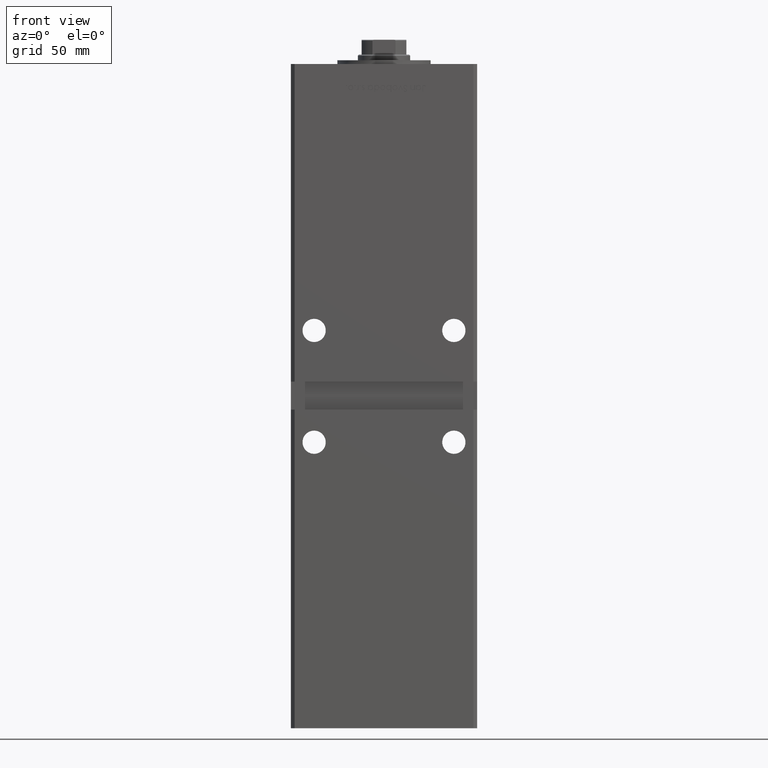
[diagram: clean part render]
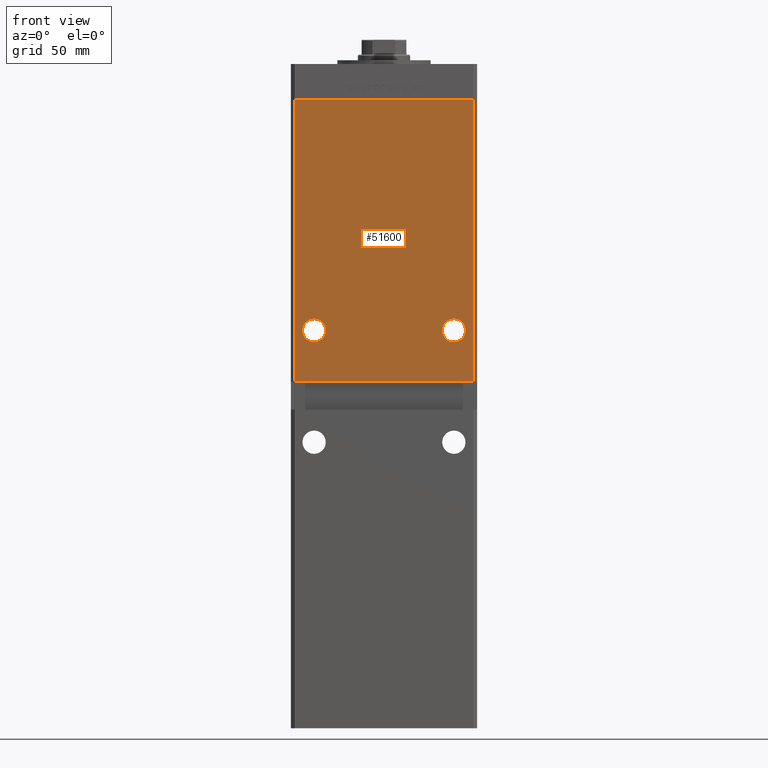
[diagram: same view with one face highlighted and labeled with its STEP entity id]
A machine part, front view. The second image highlights one B-rep face of the part: STEP entity #51600.
In plain terms, the highlighted planar face has unit normal (0, 1, 0).
Its self-contained STEP definition (entity closure, byte-faithful):
#78 = LINE ( 'NONE', #20251, #8780 ) ;
#266 = EDGE_LOOP ( 'NONE', ( #18989, #14982, #3834, #10380 ) ) ;
#2890 = VECTOR ( 'NONE', #48695, 1000.000000000000000 ) ;
#3060 = EDGE_CURVE ( 'NONE', #25524, #16520, #49893, .T. ) ;
#3333 = DIRECTION ( 'NONE',  ( 0.000000000000000000, 1.000000000000000000, 0.000000000000000000 ) ) ;
#3834 = ORIENTED_EDGE ( 'NONE', *, *, #42076, .F. ) ;
#4526 = DIRECTION ( 'NONE',  ( 0.000000000000000000, 1.000000000000000000, 0.000000000000000000 ) ) ;
#4896 = FACE_OUTER_BOUND ( 'NONE', #266, .T. ) ;
#5158 = FACE_BOUND ( 'NONE', #47475, .T. ) ;
#5722 = CIRCLE ( 'NONE', #52916, 6.250000000000005329 ) ;
#6778 = CARTESIAN_POINT ( 'NONE',  ( -49.99999999999997158, -43.50000000000000000, 167.0000000000000000 ) ) ;
#6833 = CARTESIAN_POINT ( 'NONE',  ( 47.99999999999998579, -43.50000000000000000, 318.5000000000000000 ) ) ;
#8045 = EDGE_CURVE ( 'NONE', #16520, #25524, #33638, .T. ) ;
#8780 = VECTOR ( 'NONE', #24805, 1000.000000000000000 ) ;
#9264 = ORIENTED_EDGE ( 'NONE', *, *, #22839, .T. ) ;
#10027 = LINE ( 'NONE', #6778, #2890 ) ;
#10380 = ORIENTED_EDGE ( 'NONE', *, *, #45963, .F. ) ;
#10608 = VERTEX_POINT ( 'NONE', #48732 ) ;
#11976 = VERTEX_POINT ( 'NONE', #53026 ) ;
#12274 = CARTESIAN_POINT ( 'NONE',  ( 47.99999999999998579, -43.50000000000000000, 167.0000000000000000 ) ) ;
#12429 = CARTESIAN_POINT ( 'NONE',  ( -37.50000000000000000, -43.50000000000000000, 200.7500000000000000 ) ) ;
#13346 = CARTESIAN_POINT ( 'NONE',  ( 37.50000000000000000, -43.50000000000000000, 200.7500000000000000 ) ) ;
#13528 = DIRECTION ( 'NONE',  ( 0.000000000000000000, 1.000000000000000000, 0.000000000000000000 ) ) ;
#14489 = EDGE_CURVE ( 'NONE', #23123, #11976, #10027, .T. ) ;
#14982 = ORIENTED_EDGE ( 'NONE', *, *, #14489, .F. ) ;
#15698 = CARTESIAN_POINT ( 'NONE',  ( 37.50000000000000000, -43.50000000000000000, 188.2500000000000000 ) ) ;
#15703 = DIRECTION ( 'NONE',  ( 1.000000000000000000, 0.000000000000000000, 0.000000000000000000 ) ) ;
#15908 = AXIS2_PLACEMENT_3D ( 'NONE', #21195, #4526, #29782 ) ;
#16520 = VERTEX_POINT ( 'NONE', #13346 ) ;
#18757 = AXIS2_PLACEMENT_3D ( 'NONE', #33139, #29616, #21294 ) ;
#18989 = ORIENTED_EDGE ( 'NONE', *, *, #28689, .T. ) ;
#18993 = EDGE_LOOP ( 'NONE', ( #43128, #37845 ) ) ;
#19287 = LINE ( 'NONE', #32193, #20205 ) ;
#19720 = DIRECTION ( 'NONE',  ( 0.000000000000000000, 0.000000000000000000, 1.000000000000000000 ) ) ;
#20205 = VECTOR ( 'NONE', #40787, 1000.000000000000000 ) ;
#20251 = CARTESIAN_POINT ( 'NONE',  ( -47.99999999999998579, -43.50000000000000000, 318.5000000000000000 ) ) ;
#21195 = CARTESIAN_POINT ( 'NONE',  ( -37.50000000000000000, -43.50000000000000000, 194.5000000000000000 ) ) ;
#21294 = DIRECTION ( 'NONE',  ( 0.000000000000000000, -0.000000000000000000, 1.000000000000000000 ) ) ;
#21322 = CARTESIAN_POINT ( 'NONE',  ( 37.50000000000000000, -43.50000000000000000, 194.5000000000000000 ) ) ;
#22084 = PLANE ( 'NONE',  #18757 ) ;
#22352 = CARTESIAN_POINT ( 'NONE',  ( -47.99999999999998579, -43.50000000000000000, 318.5000000000000000 ) ) ;
#22839 = EDGE_CURVE ( 'NONE', #10608, #49842, #31348, .T. ) ;
#23123 = VERTEX_POINT ( 'NONE', #12274 ) ;
#24031 = CARTESIAN_POINT ( 'NONE',  ( -47.99999999999998579, -43.50000000000000000, 318.5000000000000000 ) ) ;
#24805 = DIRECTION ( 'NONE',  ( -0.000000000000000000, -0.000000000000000000, -1.000000000000000000 ) ) ;
#25008 = AXIS2_PLACEMENT_3D ( 'NONE', #40150, #3333, #19720 ) ;
#25524 = VERTEX_POINT ( 'NONE', #15698 ) ;
#26837 = DIRECTION ( 'NONE',  ( 0.000000000000000000, 0.000000000000000000, 1.000000000000000000 ) ) ;
#28689 = EDGE_CURVE ( 'NONE', #28991, #11976, #78, .T. ) ;
#28991 = VERTEX_POINT ( 'NONE', #22352 ) ;
#29325 = AXIS2_PLACEMENT_3D ( 'NONE', #21322, #13528, #37709 ) ;
#29345 = FACE_BOUND ( 'NONE', #18993, .T. ) ;
#29616 = DIRECTION ( 'NONE',  ( 0.000000000000000000, 1.000000000000000000, 0.000000000000000000 ) ) ;
#29782 = DIRECTION ( 'NONE',  ( 0.000000000000000000, 0.000000000000000000, 1.000000000000000000 ) ) ;
#31040 = ORIENTED_EDGE ( 'NONE', *, *, #45352, .T. ) ;
#31348 = CIRCLE ( 'NONE', #15908, 6.250000000000005329 ) ;
#32193 = CARTESIAN_POINT ( 'NONE',  ( 47.99999999999998579, -43.50000000000000000, 318.5000000000000000 ) ) ;
#33139 = CARTESIAN_POINT ( 'NONE',  ( -47.99999999999998579, -43.50000000000000000, 318.5000000000000000 ) ) ;
#33638 = CIRCLE ( 'NONE', #29325, 6.250000000000005329 ) ;
#34399 = DIRECTION ( 'NONE',  ( 0.000000000000000000, 1.000000000000000000, 0.000000000000000000 ) ) ;
#37709 = DIRECTION ( 'NONE',  ( 0.000000000000000000, 0.000000000000000000, 1.000000000000000000 ) ) ;
#37845 = ORIENTED_EDGE ( 'NONE', *, *, #3060, .T. ) ;
#38374 = VECTOR ( 'NONE', #15703, 1000.000000000000000 ) ;
#39737 = CARTESIAN_POINT ( 'NONE',  ( -37.50000000000000000, -43.50000000000000000, 194.5000000000000000 ) ) ;
#40150 = CARTESIAN_POINT ( 'NONE',  ( 37.50000000000000000, -43.50000000000000000, 194.5000000000000000 ) ) ;
#40787 = DIRECTION ( 'NONE',  ( -0.000000000000000000, -0.000000000000000000, -1.000000000000000000 ) ) ;
#42076 = EDGE_CURVE ( 'NONE', #45999, #23123, #19287, .T. ) ;
#43128 = ORIENTED_EDGE ( 'NONE', *, *, #8045, .T. ) ;
#45352 = EDGE_CURVE ( 'NONE', #49842, #10608, #5722, .T. ) ;
#45963 = EDGE_CURVE ( 'NONE', #28991, #45999, #48206, .T. ) ;
#45999 = VERTEX_POINT ( 'NONE', #6833 ) ;
#47475 = EDGE_LOOP ( 'NONE', ( #31040, #9264 ) ) ;
#48206 = LINE ( 'NONE', #24031, #38374 ) ;
#48695 = DIRECTION ( 'NONE',  ( -1.000000000000000000, -0.000000000000000000, -0.000000000000000000 ) ) ;
#48732 = CARTESIAN_POINT ( 'NONE',  ( -37.50000000000000000, -43.50000000000000000, 188.2500000000000000 ) ) ;
#49842 = VERTEX_POINT ( 'NONE', #12429 ) ;
#49893 = CIRCLE ( 'NONE', #25008, 6.250000000000005329 ) ;
#51600 = ADVANCED_FACE ( 'NONE', ( #29345, #5158, #4896 ), #22084, .F. ) ;
#52916 = AXIS2_PLACEMENT_3D ( 'NONE', #39737, #34399, #26837 ) ;
#53026 = CARTESIAN_POINT ( 'NONE',  ( -47.99999999999998579, -43.50000000000000000, 167.0000000000000000 ) ) ;